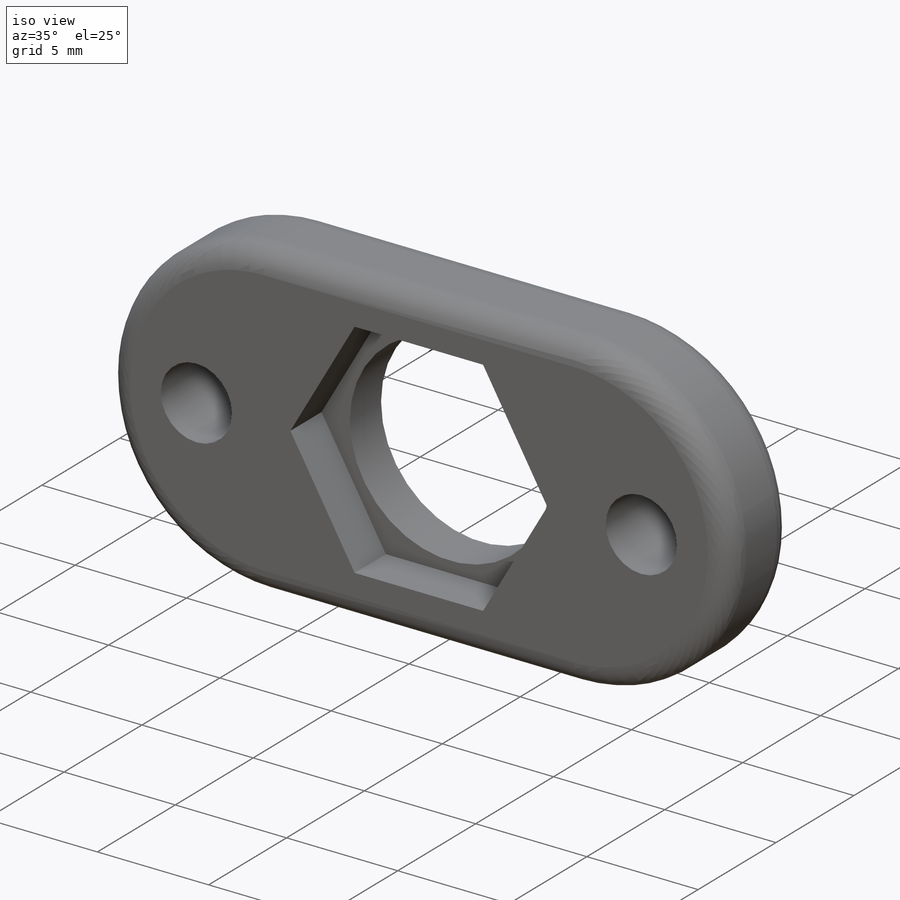
[diagram: iso view]
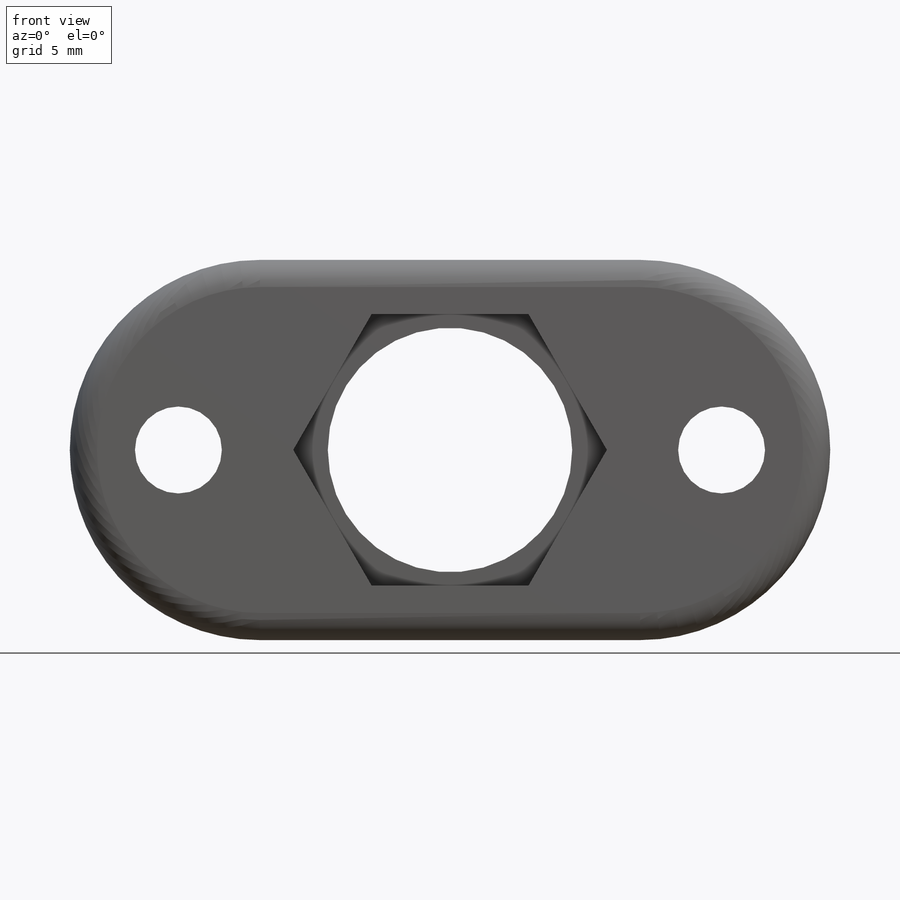
[diagram: front view]
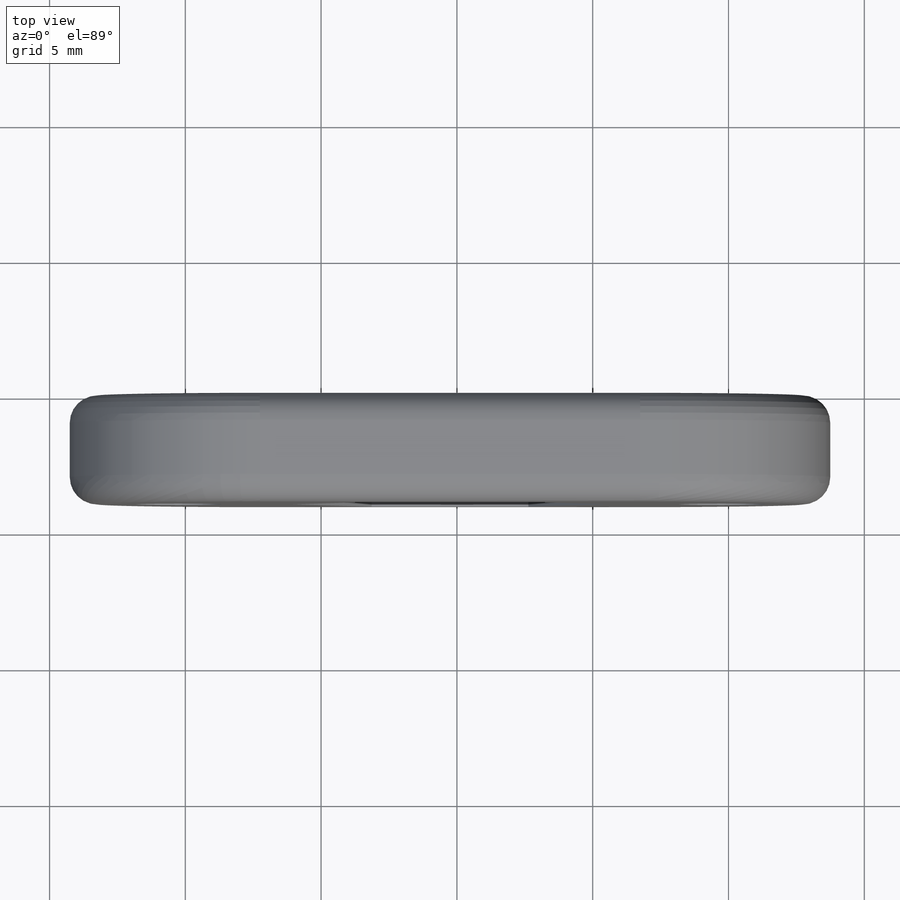
[diagram: top view]
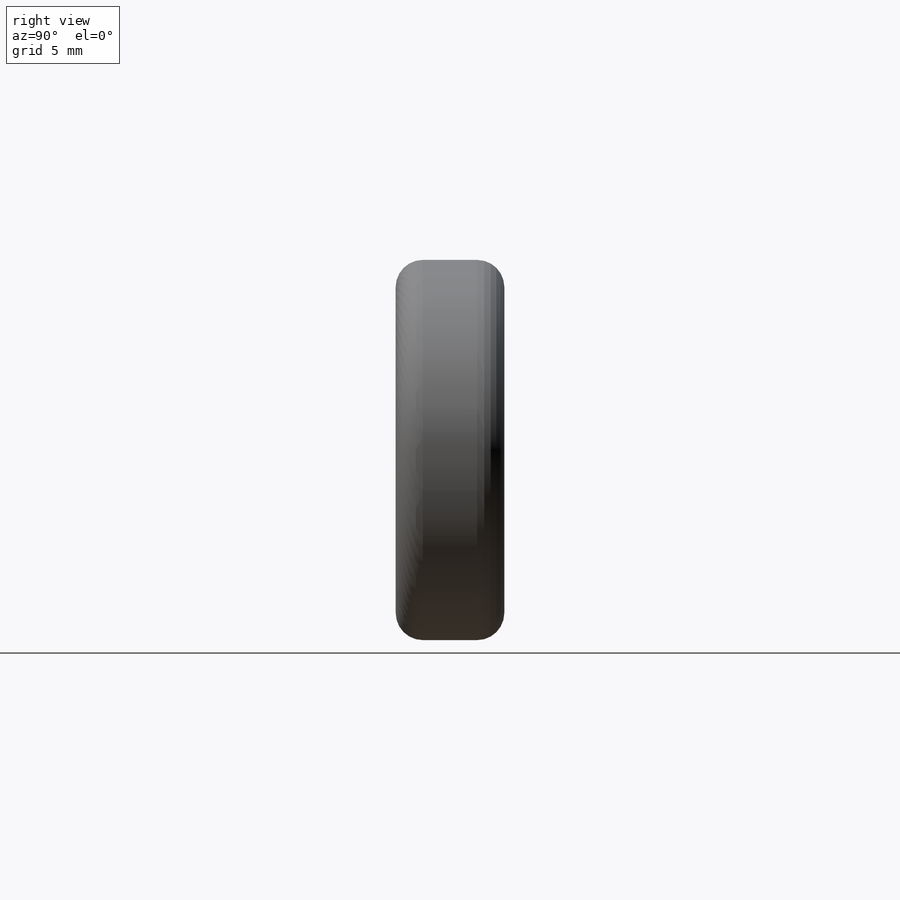
[diagram: right view]
SOLIDWORKS PART (.sldprt)
format: sldprt  version: not decoded by parser v0  size: 223,744 bytes
history: native  units: mm
features: plane x3, sketch x3, cut_extrude x2, material x1, extrude x1, fillet x1 (+8 scaffold rows collapsed)
feature tree (19):
  scaffold x8  (default folders/planes/origin — collapsed)
  material  "Matériau <non spécifié>"
  plane  "Plan de face"
  plane  "Plan de dessus"
  plane  "Plan de droite"
  sketch  "Esquisse1"  dims[D1=14.0mm D2=14.0mm D3=10.0mm]
  extrude  "Boss.-Extru.1"  Depth=4mm
  sketch  "Esquisse3"  dims[D1=3.2mm D2=3.2mm D5=9.0mm D3=20.0mm D4=10.0mm D6=7.0mm D7=7.0mm D8=7.0mm D9=7.0mm]
  cut_extrude  "Enlèv. mat.-Extru.1"  [1 undecoded]
  sketch  "Esquisse4"  dims[D1=10.0mm]
  cut_extrude  "Enlèv. mat.-Extru.2"  Depth=2mm
  fillet  "Congé1"  Radius=1mm
decode coverage: 6 of 7 modeling features carry decoded parameters
note: 1 parameter value undecoded
note: suppression state not decoded; provenance and decode notes live in map.json
